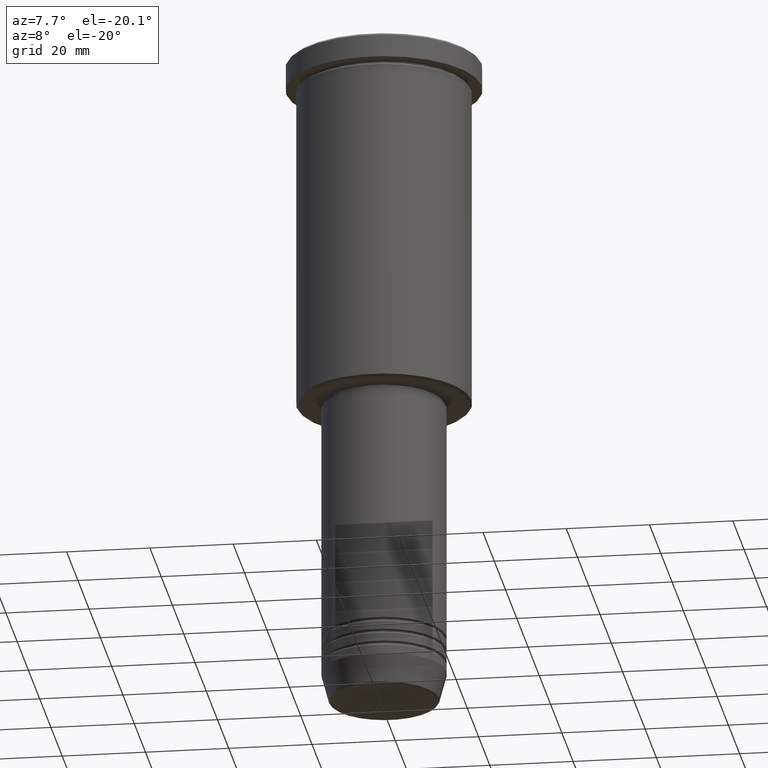
[diagram: clean part render]
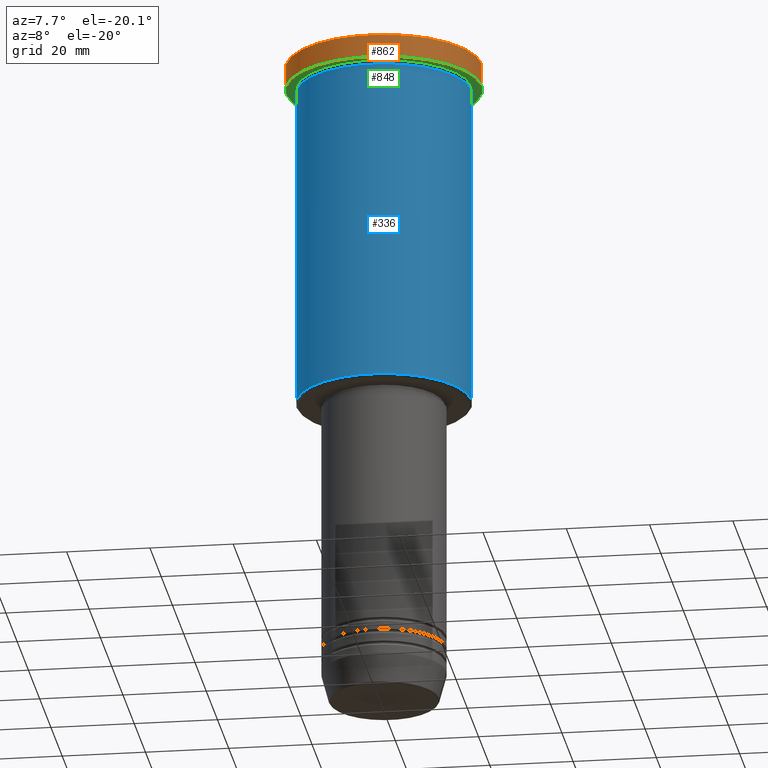
[diagram: same view with three faces highlighted in distinct colors, each labeled with its STEP entity id]
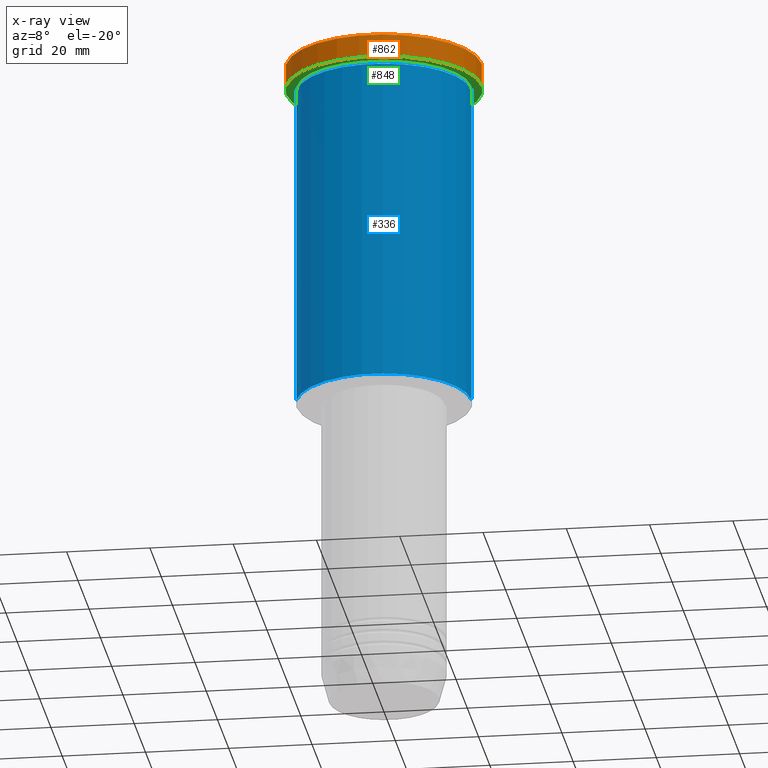
[diagram: x-ray of the same camera — body ghosted, the three highlighted faces saturated]
A machine part, auxiliary view with three faces highlighted in distinct colors.
The next image is the same camera in x-ray (body ghosted, the three faces saturated) — at least one of them is partly hidden behind the body in this view.
Their STEP definitions:

[orange] entity #862 — the highlighted cylindrical surface (partial cylindrical patch) has radius 23.5 mm, axis along (-0, -0, 1).
#40 = CARTESIAN_POINT ( 'NONE',  ( -23.50000000000000000, 2.877919977996280320E-15, -0.5000000000000143219 ) ) ;
#54 = CARTESIAN_POINT ( 'NONE',  ( 23.50000000000000000, 0.000000000000000000, -5.999999999999994671 ) ) ;
#90 = AXIS2_PLACEMENT_3D ( 'NONE', #1119, #649, #827 ) ;
#106 = DIRECTION ( 'NONE',  ( -0.000000000000000000, -0.000000000000000000, 1.000000000000000000 ) ) ;
#109 = DIRECTION ( 'NONE',  ( 1.000000000000000000, 0.000000000000000000, 0.000000000000000000 ) ) ;
#112 = EDGE_CURVE ( 'NONE', #255, #486, #447, .T. ) ;
#136 = VERTEX_POINT ( 'NONE', #476 ) ;
#155 = ORIENTED_EDGE ( 'NONE', *, *, #1012, .F. ) ;
#206 = CARTESIAN_POINT ( 'NONE',  ( 23.50000000000000000, 0.000000000000000000, -0.5000000000000143219 ) ) ;
#255 = VERTEX_POINT ( 'NONE', #206 ) ;
#360 = CIRCLE ( 'NONE', #1023, 23.50000000000000000 ) ;
#369 = LINE ( 'NONE', #904, #453 ) ;
#381 = CARTESIAN_POINT ( 'NONE',  ( 23.50000000000000000, 0.000000000000000000, 0.000000000000000000 ) ) ;
#447 = CIRCLE ( 'NONE', #90, 23.50000000000000000 ) ;
#453 = VECTOR ( 'NONE', #106, 1000.000000000000000 ) ;
#476 = CARTESIAN_POINT ( 'NONE',  ( -23.50000000000000000, 2.877919977996280320E-15, -5.999999999999994671 ) ) ;
#486 = VERTEX_POINT ( 'NONE', #40 ) ;
#492 = ORIENTED_EDGE ( 'NONE', *, *, #832, .T. ) ;
#602 = CYLINDRICAL_SURFACE ( 'NONE', #863, 23.50000000000000000 ) ;
#649 = DIRECTION ( 'NONE',  ( 0.000000000000000000, 0.000000000000000000, -1.000000000000000000 ) ) ;
#652 = DIRECTION ( 'NONE',  ( -0.000000000000000000, -0.000000000000000000, 1.000000000000000000 ) ) ;
#689 = ORIENTED_EDGE ( 'NONE', *, *, #1153, .T. ) ;
#695 = DIRECTION ( 'NONE',  ( 1.000000000000000000, 0.000000000000000000, 0.000000000000000000 ) ) ;
#699 = VECTOR ( 'NONE', #652, 1000.000000000000000 ) ;
#706 = FACE_OUTER_BOUND ( 'NONE', #920, .T. ) ;
#721 = DIRECTION ( 'NONE',  ( -0.000000000000000000, -0.000000000000000000, 1.000000000000000000 ) ) ;
#827 = DIRECTION ( 'NONE',  ( 1.000000000000000000, 0.000000000000000000, 0.000000000000000000 ) ) ;
#832 = EDGE_CURVE ( 'NONE', #889, #255, #1117, .T. ) ;
#862 = ADVANCED_FACE ( 'NONE', ( #706 ), #602, .T. ) ;
#863 = AXIS2_PLACEMENT_3D ( 'NONE', #1145, #957, #695 ) ;
#889 = VERTEX_POINT ( 'NONE', #54 ) ;
#904 = CARTESIAN_POINT ( 'NONE',  ( -23.50000000000000000, 2.877919977996280320E-15, 0.000000000000000000 ) ) ;
#920 = EDGE_LOOP ( 'NONE', ( #155, #689, #492, #1044 ) ) ;
#957 = DIRECTION ( 'NONE',  ( -0.000000000000000000, -0.000000000000000000, 1.000000000000000000 ) ) ;
#1012 = EDGE_CURVE ( 'NONE', #136, #486, #369, .T. ) ;
#1023 = AXIS2_PLACEMENT_3D ( 'NONE', #1092, #721, #109 ) ;
#1044 = ORIENTED_EDGE ( 'NONE', *, *, #112, .T. ) ;
#1092 = CARTESIAN_POINT ( 'NONE',  ( 0.000000000000000000, 0.000000000000000000, -5.999999999999994671 ) ) ;
#1117 = LINE ( 'NONE', #381, #699 ) ;
#1119 = CARTESIAN_POINT ( 'NONE',  ( 0.000000000000000000, 0.000000000000000000, -0.5000000000000143219 ) ) ;
#1145 = CARTESIAN_POINT ( 'NONE',  ( 0.000000000000000000, 0.000000000000000000, 0.000000000000000000 ) ) ;
#1153 = EDGE_CURVE ( 'NONE', #136, #889, #360, .T. ) ;

[blue] entity #336 — the highlighted cylindrical surface (partial cylindrical patch) has radius 21 mm, axis along (-0, -0, 1).
#22 = EDGE_CURVE ( 'NONE', #516, #56, #704, .T. ) ;
#26 = AXIS2_PLACEMENT_3D ( 'NONE', #717, #709, #1082 ) ;
#56 = VERTEX_POINT ( 'NONE', #1085 ) ;
#62 = DIRECTION ( 'NONE',  ( -0.000000000000000000, -0.000000000000000000, 1.000000000000000000 ) ) ;
#81 = EDGE_LOOP ( 'NONE', ( #585, #712, #946, #479 ) ) ;
#113 = DIRECTION ( 'NONE',  ( 1.000000000000000000, 0.000000000000000000, 0.000000000000000000 ) ) ;
#115 = CARTESIAN_POINT ( 'NONE',  ( -21.00000000000000000, 2.571758278209441661E-15, -85.49999999999998579 ) ) ;
#140 = CARTESIAN_POINT ( 'NONE',  ( -21.00000000000000000, 2.571758278209441661E-15, 0.000000000000000000 ) ) ;
#176 = CIRCLE ( 'NONE', #559, 21.00000000000000000 ) ;
#213 = AXIS2_PLACEMENT_3D ( 'NONE', #648, #459, #113 ) ;
#216 = CARTESIAN_POINT ( 'NONE',  ( -21.00000000000000000, 2.571758278209441661E-15, -6.999999999999994671 ) ) ;
#230 = VECTOR ( 'NONE', #1096, 1000.000000000000000 ) ;
#321 = VERTEX_POINT ( 'NONE', #804 ) ;
#336 = ADVANCED_FACE ( 'NONE', ( #1176 ), #357, .T. ) ;
#357 = CYLINDRICAL_SURFACE ( 'NONE', #213, 21.00000000000000000 ) ;
#373 = LINE ( 'NONE', #728, #230 ) ;
#420 = DIRECTION ( 'NONE',  ( -1.000000000000000000, 0.000000000000000000, 0.000000000000000000 ) ) ;
#459 = DIRECTION ( 'NONE',  ( -0.000000000000000000, -0.000000000000000000, 1.000000000000000000 ) ) ;
#479 = ORIENTED_EDGE ( 'NONE', *, *, #22, .F. ) ;
#508 = CARTESIAN_POINT ( 'NONE',  ( 0.000000000000000000, 0.000000000000000000, -85.49999999999998579 ) ) ;
#516 = VERTEX_POINT ( 'NONE', #216 ) ;
#559 = AXIS2_PLACEMENT_3D ( 'NONE', #508, #62, #420 ) ;
#578 = LINE ( 'NONE', #140, #1074 ) ;
#585 = ORIENTED_EDGE ( 'NONE', *, *, #591, .F. ) ;
#591 = EDGE_CURVE ( 'NONE', #1077, #516, #578, .T. ) ;
#648 = CARTESIAN_POINT ( 'NONE',  ( 0.000000000000000000, 0.000000000000000000, 0.000000000000000000 ) ) ;
#694 = EDGE_CURVE ( 'NONE', #1077, #321, #176, .T. ) ;
#704 = CIRCLE ( 'NONE', #26, 21.00000000000000000 ) ;
#709 = DIRECTION ( 'NONE',  ( -0.000000000000000000, -0.000000000000000000, 1.000000000000000000 ) ) ;
#712 = ORIENTED_EDGE ( 'NONE', *, *, #694, .T. ) ;
#717 = CARTESIAN_POINT ( 'NONE',  ( 0.000000000000000000, 0.000000000000000000, -6.999999999999994671 ) ) ;
#728 = CARTESIAN_POINT ( 'NONE',  ( 21.00000000000000000, 0.000000000000000000, 0.000000000000000000 ) ) ;
#804 = CARTESIAN_POINT ( 'NONE',  ( 21.00000000000000000, 0.000000000000000000, -85.49999999999998579 ) ) ;
#850 = DIRECTION ( 'NONE',  ( -0.000000000000000000, -0.000000000000000000, 1.000000000000000000 ) ) ;
#946 = ORIENTED_EDGE ( 'NONE', *, *, #1045, .T. ) ;
#1045 = EDGE_CURVE ( 'NONE', #321, #56, #373, .T. ) ;
#1074 = VECTOR ( 'NONE', #850, 1000.000000000000000 ) ;
#1077 = VERTEX_POINT ( 'NONE', #115 ) ;
#1082 = DIRECTION ( 'NONE',  ( 1.000000000000000000, 0.000000000000000000, 0.000000000000000000 ) ) ;
#1085 = CARTESIAN_POINT ( 'NONE',  ( 21.00000000000000000, 0.000000000000000000, -6.999999999999994671 ) ) ;
#1096 = DIRECTION ( 'NONE',  ( -0.000000000000000000, -0.000000000000000000, 1.000000000000000000 ) ) ;
#1176 = FACE_OUTER_BOUND ( 'NONE', #81, .T. ) ;

[green] entity #848 — the highlighted planar face has unit normal (0, 0, -1).
#18 = CIRCLE ( 'NONE', #511, 21.00000000000000000 ) ;
#23 = DIRECTION ( 'NONE',  ( -1.000000000000000000, 0.000000000000000000, 0.000000000000000000 ) ) ;
#47 = CARTESIAN_POINT ( 'NONE',  ( 21.00000000000000000, 2.571758278209441661E-15, -5.999999999999994671 ) ) ;
#54 = CARTESIAN_POINT ( 'NONE',  ( 23.50000000000000000, 0.000000000000000000, -5.999999999999994671 ) ) ;
#109 = DIRECTION ( 'NONE',  ( 1.000000000000000000, 0.000000000000000000, 0.000000000000000000 ) ) ;
#116 = CIRCLE ( 'NONE', #766, 21.00000000000000000 ) ;
#121 = FACE_BOUND ( 'NONE', #837, .T. ) ;
#136 = VERTEX_POINT ( 'NONE', #476 ) ;
#205 = CARTESIAN_POINT ( 'NONE',  ( -21.00000000000000000, 0.000000000000000000, -5.999999999999994671 ) ) ;
#257 = CARTESIAN_POINT ( 'NONE',  ( 0.000000000000000000, 0.000000000000000000, -5.999999999999994671 ) ) ;
#310 = DIRECTION ( 'NONE',  ( 0.000000000000000000, 0.000000000000000000, -1.000000000000000000 ) ) ;
#319 = CARTESIAN_POINT ( 'NONE',  ( 0.000000000000000000, 0.000000000000000000, -5.999999999999994671 ) ) ;
#360 = CIRCLE ( 'NONE', #1023, 23.50000000000000000 ) ;
#388 = EDGE_CURVE ( 'NONE', #889, #136, #472, .T. ) ;
#393 = PLANE ( 'NONE',  #884 ) ;
#409 = DIRECTION ( 'NONE',  ( -1.000000000000000000, 0.000000000000000000, 0.000000000000000000 ) ) ;
#445 = ORIENTED_EDGE ( 'NONE', *, *, #873, .T. ) ;
#472 = CIRCLE ( 'NONE', #826, 23.50000000000000000 ) ;
#476 = CARTESIAN_POINT ( 'NONE',  ( -23.50000000000000000, 2.877919977996280320E-15, -5.999999999999994671 ) ) ;
#511 = AXIS2_PLACEMENT_3D ( 'NONE', #257, #976, #409 ) ;
#518 = DIRECTION ( 'NONE',  ( -1.000000000000000000, 0.000000000000000000, -0.000000000000000000 ) ) ;
#551 = VERTEX_POINT ( 'NONE', #47 ) ;
#658 = CARTESIAN_POINT ( 'NONE',  ( 0.000000000000000000, 0.000000000000000000, -5.999999999999994671 ) ) ;
#666 = ORIENTED_EDGE ( 'NONE', *, *, #388, .F. ) ;
#676 = EDGE_LOOP ( 'NONE', ( #666, #1162 ) ) ;
#721 = DIRECTION ( 'NONE',  ( -0.000000000000000000, -0.000000000000000000, 1.000000000000000000 ) ) ;
#752 = CARTESIAN_POINT ( 'NONE',  ( 0.000000000000000000, 23.50000000000000000, -5.999999999999994671 ) ) ;
#759 = ORIENTED_EDGE ( 'NONE', *, *, #814, .T. ) ;
#766 = AXIS2_PLACEMENT_3D ( 'NONE', #319, #839, #23 ) ;
#814 = EDGE_CURVE ( 'NONE', #821, #551, #116, .T. ) ;
#821 = VERTEX_POINT ( 'NONE', #205 ) ;
#826 = AXIS2_PLACEMENT_3D ( 'NONE', #658, #1021, #1033 ) ;
#837 = EDGE_LOOP ( 'NONE', ( #759, #445 ) ) ;
#839 = DIRECTION ( 'NONE',  ( -0.000000000000000000, -0.000000000000000000, 1.000000000000000000 ) ) ;
#848 = ADVANCED_FACE ( 'NONE', ( #121, #931 ), #393, .T. ) ;
#873 = EDGE_CURVE ( 'NONE', #551, #821, #18, .T. ) ;
#884 = AXIS2_PLACEMENT_3D ( 'NONE', #752, #310, #518 ) ;
#889 = VERTEX_POINT ( 'NONE', #54 ) ;
#931 = FACE_OUTER_BOUND ( 'NONE', #676, .T. ) ;
#976 = DIRECTION ( 'NONE',  ( -0.000000000000000000, -0.000000000000000000, 1.000000000000000000 ) ) ;
#1021 = DIRECTION ( 'NONE',  ( -0.000000000000000000, -0.000000000000000000, 1.000000000000000000 ) ) ;
#1023 = AXIS2_PLACEMENT_3D ( 'NONE', #1092, #721, #109 ) ;
#1033 = DIRECTION ( 'NONE',  ( 1.000000000000000000, 0.000000000000000000, 0.000000000000000000 ) ) ;
#1092 = CARTESIAN_POINT ( 'NONE',  ( 0.000000000000000000, 0.000000000000000000, -5.999999999999994671 ) ) ;
#1153 = EDGE_CURVE ( 'NONE', #136, #889, #360, .T. ) ;
#1162 = ORIENTED_EDGE ( 'NONE', *, *, #1153, .F. ) ;